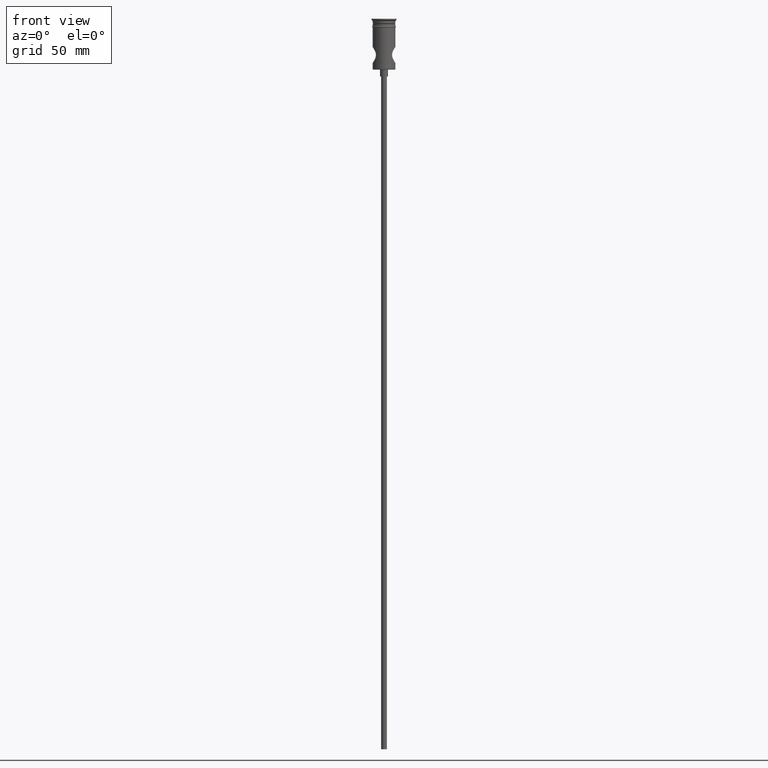
[diagram: clean part render]
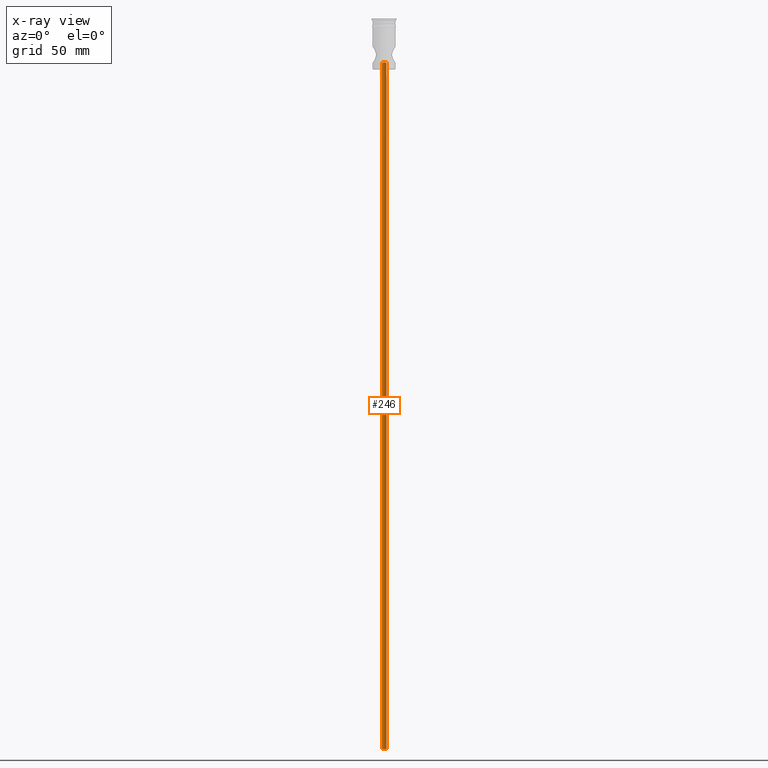
[diagram: x-ray — body ghosted, one internal face saturated and labeled with its STEP entity id]
A machine part, front view, then the same camera in x-ray: the body is ghosted and one INTERNAL B-rep face — a face not visible from any outside direction — is saturated and labeled: STEP entity #246.
In plain terms, the highlighted cylindrical surface (edge-blend (fillet) strip) has radius 1 mm, axis along (-0, -0, -1).
Its self-contained STEP definition (entity closure, byte-faithful):
#10 = DIRECTION ( 'NONE',  ( -0.000000000000000000, -0.000000000000000000, -1.000000000000000000 ) ) ;
#16 = VERTEX_POINT ( 'NONE', #809 ) ;
#20 = CARTESIAN_POINT ( 'NONE',  ( 1.000000000000000000, 4.681958892246364514E-21, -19.50000000000000000 ) ) ;
#30 = CIRCLE ( 'NONE', #1396, 1.000000000000000000 ) ;
#37 = CARTESIAN_POINT ( 'NONE',  ( -0.5041604651539031146, 0.8734111625493790054, -19.38966761113383086 ) ) ;
#42 = CARTESIAN_POINT ( 'NONE',  ( 0.9735452106493993618, 0.2631358747190585823, -19.49219990523366519 ) ) ;
#51 = CARTESIAN_POINT ( 'NONE',  ( 0.1319932390273248490, 0.9999802383981537535, -19.35410785802095646 ) ) ;
#108 = DIRECTION ( 'NONE',  ( 0.000000000000000000, 0.000000000000000000, -1.000000000000000000 ) ) ;
#115 = LINE ( 'NONE', #1416, #1198 ) ;
#165 = VERTEX_POINT ( 'NONE', #1092 ) ;
#189 = FACE_OUTER_BOUND ( 'NONE', #845, .T. ) ;
#223 = AXIS2_PLACEMENT_3D ( 'NONE', #418, #846, #869 ) ;
#246 = ADVANCED_FACE ( 'NONE', ( #189 ), #977, .F. ) ;
#269 = CARTESIAN_POINT ( 'NONE',  ( 0.6150344307886690398, 0.7992185073637478876, -19.40883033734092322 ) ) ;
#283 = CARTESIAN_POINT ( 'NONE',  ( -0.9732933389586853057, 0.2640922853737913134, -19.49212774291619965 ) ) ;
#327 = DIRECTION ( 'NONE',  ( -1.000000000000000000, 0.000000000000000000, 0.000000000000000000 ) ) ;
#373 = CARTESIAN_POINT ( 'NONE',  ( -0.1316936354710128432, 1.000019739161273513, -19.35409608116890112 ) ) ;
#418 = CARTESIAN_POINT ( 'NONE',  ( 0.000000000000000000, 0.000000000000000000, 0.0009999999999732445133 ) ) ;
#429 = ORIENTED_EDGE ( 'NONE', *, *, #821, .T. ) ;
#464 = CARTESIAN_POINT ( 'NONE',  ( 0.2621150761560532283, 0.9740305859285212087, -19.36214649845096858 ) ) ;
#489 = CARTESIAN_POINT ( 'NONE',  ( 0.5059809035076541228, 0.8725956800019867288, -19.38988811594309425 ) ) ;
#592 = CARTESIAN_POINT ( 'NONE',  ( 0.8734106350840727950, 0.5041672621904196294, -19.46561914214669287 ) ) ;
#621 = ORIENTED_EDGE ( 'NONE', *, *, #905, .F. ) ;
#659 = B_SPLINE_CURVE_WITH_KNOTS ( 'NONE', 3,
 ( #20, #1248, #42, #592, #1040, #269, #489, #464, #51, #373, #918, #37, #941, #1368, #823, #283, #1200, #1094 ),
 .UNSPECIFIED., .F., .F.,
 ( 4, 2, 2, 2, 2, 2, 2, 2, 4 ),
 ( 0.003142913064405511523, 0.003535670621078468041, 0.003928428177751424125, 0.004321185734424380642, 0.004713943291097337160, 0.005106700847770293678, 0.005499458404443250195, 0.005892215961116205845, 0.006284973517789162363 ),
 .UNSPECIFIED. ) ;
#742 = EDGE_CURVE ( 'NONE', #16, #165, #659, .T. ) ;
#750 = DIRECTION ( 'NONE',  ( -0.000000000000000000, -0.000000000000000000, -1.000000000000000000 ) ) ;
#809 = CARTESIAN_POINT ( 'NONE',  ( 1.000000000000000000, 4.681958892246364514E-21, -19.50000000000000000 ) ) ;
#821 = EDGE_CURVE ( 'NONE', #165, #1257, #1270, .T. ) ;
#823 = CARTESIAN_POINT ( 'NONE',  ( -0.8728688940508974037, 0.5051183550947857537, -19.46548068172155510 ) ) ;
#845 = EDGE_LOOP ( 'NONE', ( #621, #1342, #429, #1063 ) ) ;
#846 = DIRECTION ( 'NONE',  ( -0.000000000000000000, -0.000000000000000000, -1.000000000000000000 ) ) ;
#869 = DIRECTION ( 'NONE',  ( -1.000000000000000000, 0.000000000000000000, 0.000000000000000000 ) ) ;
#905 = EDGE_CURVE ( 'NONE', #16, #1117, #115, .T. ) ;
#918 = CARTESIAN_POINT ( 'NONE',  ( -0.2631726871121145006, 0.9735322132565759068, -19.36228026829819271 ) ) ;
#941 = CARTESIAN_POINT ( 'NONE',  ( -0.6150493311797187168, 0.7990795749240167112, -19.40884566432808001 ) ) ;
#977 = CYLINDRICAL_SURFACE ( 'NONE', #223, 1.000000000000000000 ) ;
#1040 = CARTESIAN_POINT ( 'NONE',  ( 0.7994811891185863439, 0.6146929329460447677, -19.44688657914280228 ) ) ;
#1063 = ORIENTED_EDGE ( 'NONE', *, *, #1355, .T. ) ;
#1092 = CARTESIAN_POINT ( 'NONE',  ( -1.000000000000000000, 0.000000000000000000, -19.50000000000000000 ) ) ;
#1094 = CARTESIAN_POINT ( 'NONE',  ( -1.000000000000000000, 0.000000000000000000, -19.50000000000000000 ) ) ;
#1117 = VERTEX_POINT ( 'NONE', #1164 ) ;
#1164 = CARTESIAN_POINT ( 'NONE',  ( 1.000000000000000000, 1.224646799147353207E-16, -322.5000000000000000 ) ) ;
#1183 = CARTESIAN_POINT ( 'NONE',  ( -1.000000000000000000, 0.000000000000000000, -322.5000000000000000 ) ) ;
#1198 = VECTOR ( 'NONE', #10, 1000.000000000000000 ) ;
#1200 = CARTESIAN_POINT ( 'NONE',  ( -1.000000000000000222, 0.1328548843624557663, -19.50000000000000355 ) ) ;
#1248 = CARTESIAN_POINT ( 'NONE',  ( 1.000000000000000000, 0.1309286667429949147, -19.49999999999999645 ) ) ;
#1257 = VERTEX_POINT ( 'NONE', #1183 ) ;
#1270 = LINE ( 'NONE', #1384, #1379 ) ;
#1342 = ORIENTED_EDGE ( 'NONE', *, *, #742, .T. ) ;
#1355 = EDGE_CURVE ( 'NONE', #1257, #1117, #30, .T. ) ;
#1368 = CARTESIAN_POINT ( 'NONE',  ( -0.7985123707879597799, 0.6157855475276747814, -19.44667449721106323 ) ) ;
#1379 = VECTOR ( 'NONE', #750, 1000.000000000000000 ) ;
#1384 = CARTESIAN_POINT ( 'NONE',  ( -1.000000000000000000, 0.000000000000000000, 0.0009999999999732445133 ) ) ;
#1396 = AXIS2_PLACEMENT_3D ( 'NONE', #1429, #108, #327 ) ;
#1416 = CARTESIAN_POINT ( 'NONE',  ( 1.000000000000000000, 1.224646799147353207E-16, 0.0009999999999732445133 ) ) ;
#1429 = CARTESIAN_POINT ( 'NONE',  ( 0.000000000000000000, 0.000000000000000000, -322.5000000000000000 ) ) ;